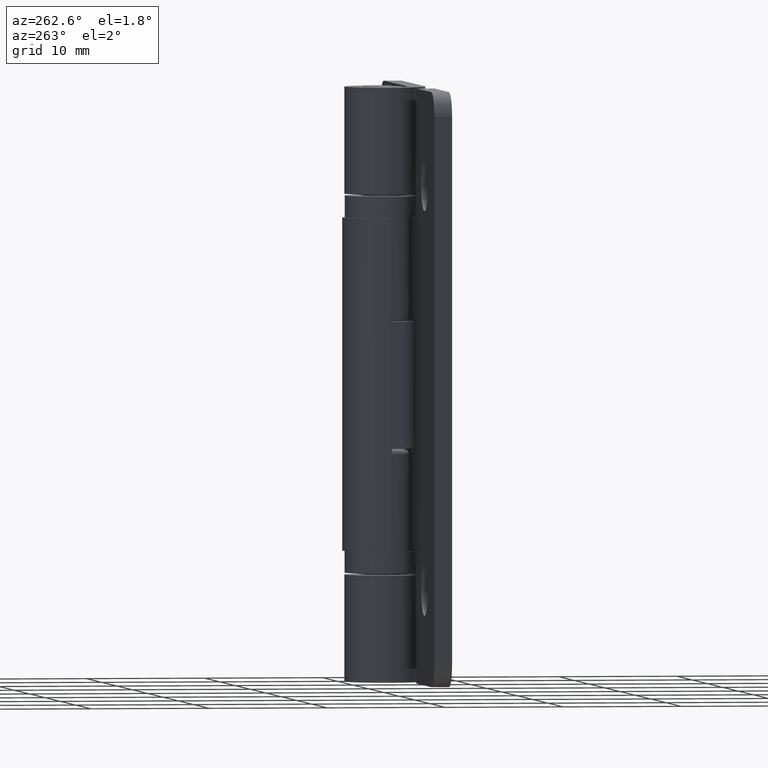
[diagram: clean part render]
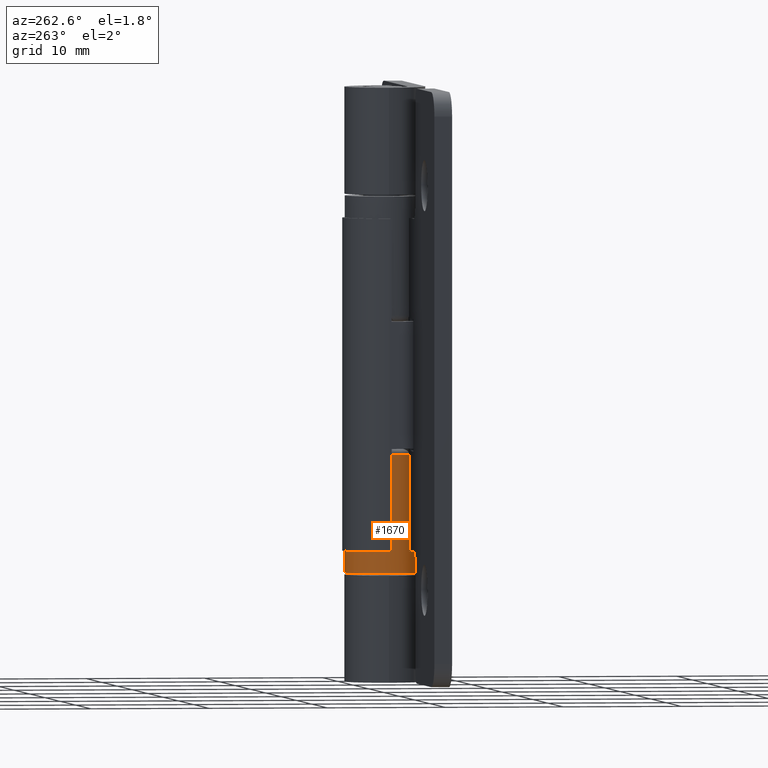
[diagram: same view with one face highlighted and labeled with its STEP entity id]
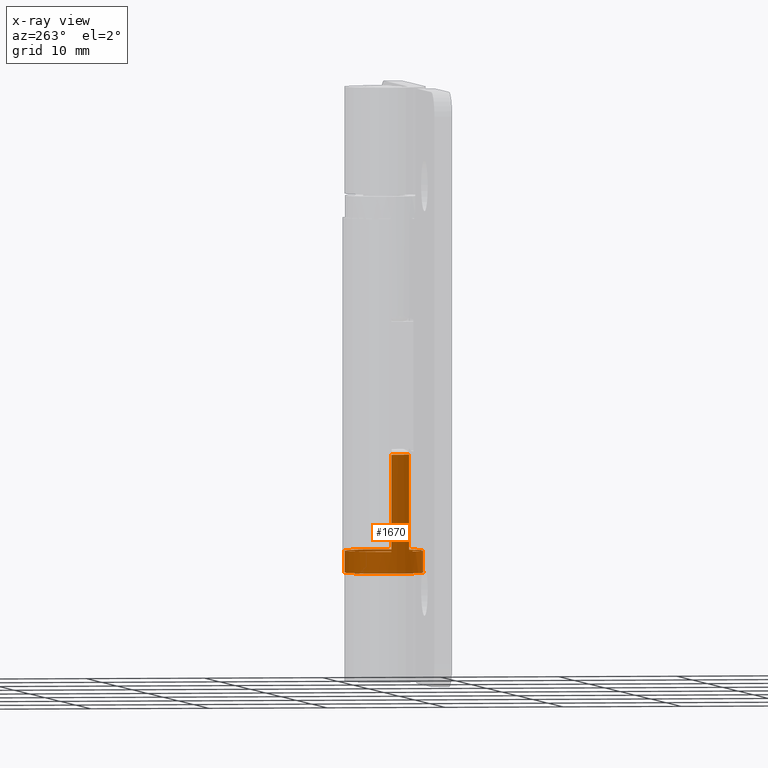
[diagram: x-ray of the same camera — body ghosted, the highlighted face saturated]
A machine part, auxiliary view. The second image highlights one B-rep face of the part: STEP entity #1670.
The next image is the same camera in x-ray: the body ghosted, the highlighted face saturated — about 4% of this face is hidden behind the body in this view.
In plain terms, the highlighted cylindrical surface (bore or boss wall) has radius 3.3 mm, axis along (-0, 0, -1).
Its self-contained STEP definition (entity closure, byte-faithful):
#182=LINE('',#2820,#304);
#183=LINE('',#2823,#305);
#304=VECTOR('',#2252,8.15);
#305=VECTOR('',#2255,8.15);
#390=FACE_BOUND('',#584,.T.);
#465=FACE_OUTER_BOUND('',#583,.T.);
#583=EDGE_LOOP('',(#1422,#1423,#1424,#1425));
#584=EDGE_LOOP('',(#1426));
#699=CIRCLE('',#1834,3.3);
#700=CIRCLE('',#1835,3.3);
#701=CIRCLE('',#1836,3.3);
#847=VERTEX_POINT('',#2816);
#848=VERTEX_POINT('',#2817);
#849=VERTEX_POINT('',#2819);
#850=VERTEX_POINT('',#2821);
#851=VERTEX_POINT('',#2824);
#1049=EDGE_CURVE('',#847,#848,#699,.T.);
#1050=EDGE_CURVE('',#849,#848,#182,.T.);
#1051=EDGE_CURVE('',#849,#850,#700,.T.);
#1052=EDGE_CURVE('',#850,#847,#183,.T.);
#1053=EDGE_CURVE('',#851,#851,#701,.T.);
#1422=ORIENTED_EDGE('',*,*,#1049,.T.);
#1423=ORIENTED_EDGE('',*,*,#1050,.F.);
#1424=ORIENTED_EDGE('',*,*,#1051,.T.);
#1425=ORIENTED_EDGE('',*,*,#1052,.T.);
#1426=ORIENTED_EDGE('',*,*,#1053,.F.);
#1597=CYLINDRICAL_SURFACE('',#1833,3.3);
#1670=ADVANCED_FACE('',(#465,#390),#1597,.T.);
#1833=AXIS2_PLACEMENT_3D('',#2815,#2248,#2249);
#1834=AXIS2_PLACEMENT_3D('',#2818,#2250,#2251);
#1835=AXIS2_PLACEMENT_3D('',#2822,#2253,#2254);
#1836=AXIS2_PLACEMENT_3D('',#2825,#2256,#2257);
#2248=DIRECTION('center_axis',(0.,1.,0.));
#2249=DIRECTION('ref_axis',(0.,0.,1.));
#2250=DIRECTION('center_axis',(0.,1.,0.));
#2251=DIRECTION('ref_axis',(0.,0.,1.));
#2252=DIRECTION('',(0.,1.,0.));
#2253=DIRECTION('center_axis',(0.,1.,0.));
#2254=DIRECTION('ref_axis',(0.,0.,1.));
#2255=DIRECTION('',(0.,1.,0.));
#2256=DIRECTION('center_axis',(0.,1.,0.));
#2257=DIRECTION('ref_axis',(0.,0.,1.));
#2815=CARTESIAN_POINT('Origin',(0.,-1.85,0.));
#2816=CARTESIAN_POINT('',(-2.88617393793236,-1.85,1.6));
#2817=CARTESIAN_POINT('',(-3.3,-1.85,0.));
#2818=CARTESIAN_POINT('Origin',(0.,-1.85,0.));
#2819=CARTESIAN_POINT('',(-3.3,-10.,-6.0620016557794E-16));
#2820=CARTESIAN_POINT('',(-3.3,-10.5,-6.0620016557794E-16));
#2821=CARTESIAN_POINT('',(-2.88617393793236,-10.,1.6));
#2822=CARTESIAN_POINT('Origin',(0.,-10.,0.));
#2823=CARTESIAN_POINT('',(-2.88617393793236,-10.5,1.6));
#2824=CARTESIAN_POINT('',(0.,0.,3.3));
#2825=CARTESIAN_POINT('Origin',(0.,0.,0.));